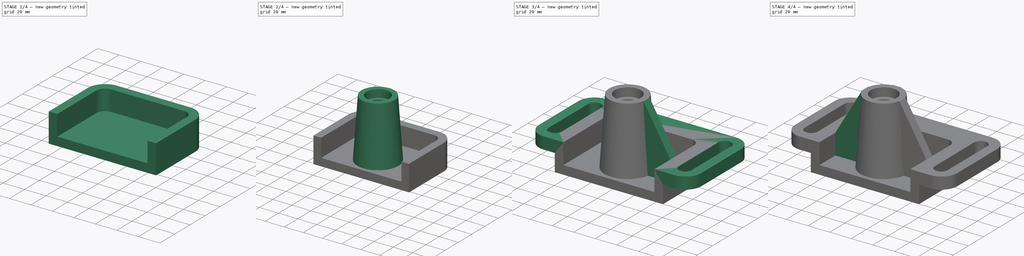
[diagram: build sequence overview — one tinted view per stage of 4, left to right]
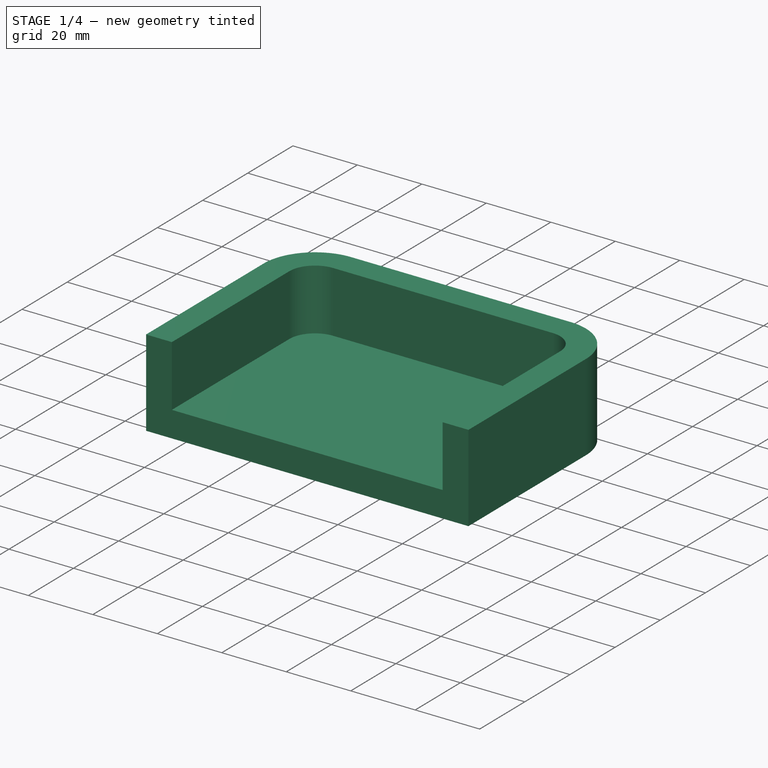
[diagram: stage 1 of 4 — iso view after this stage's code; geometry added in this stage tinted green]
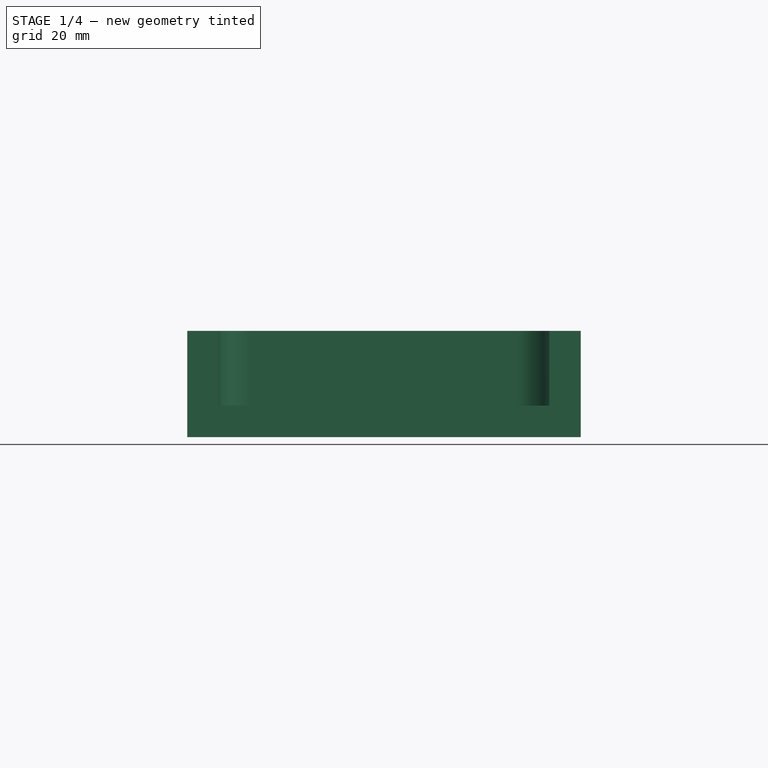
[diagram: stage 1 of 4 — front view after this stage's code; geometry added in this stage tinted green]
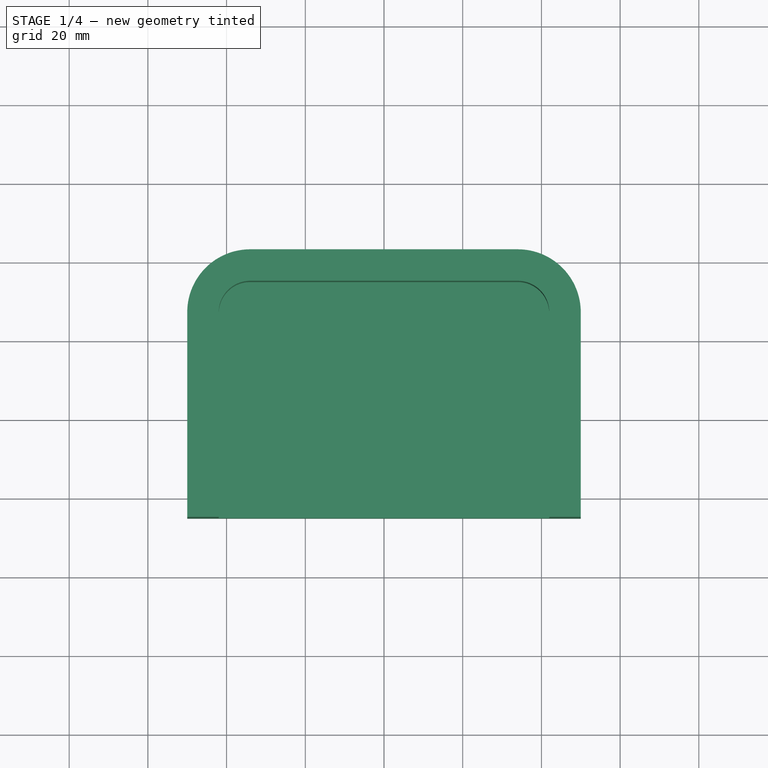
[diagram: stage 1 of 4 — top view after this stage's code; geometry added in this stage tinted green]
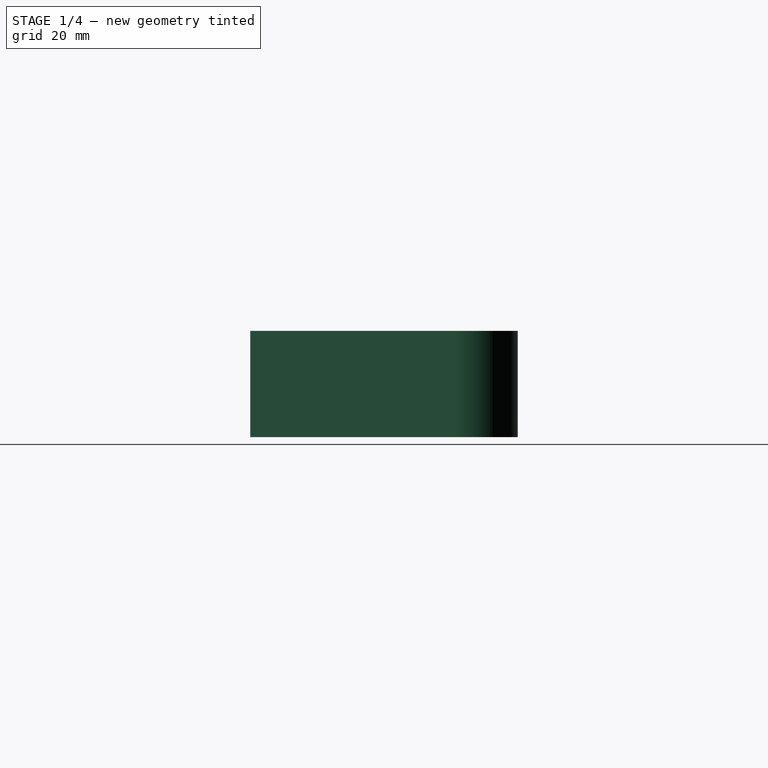
[diagram: stage 1 of 4 — right view after this stage's code; geometry added in this stage tinted green]
FCSTD DOCUMENT  (FreeCAD 1.1R41905 (Git))
Label: 24-WC-34-Slide_Guide
License: Creative Commons Attribution-NonCommercial-ShareAlike 4.0
LicenseURL: https://creativecommons.org/licenses/by-nc-sa/4.0/
objects: Sketcher::SketchObject×5, PartDesign::Pad×5, App::Point×1, PartDesign::Thickness×1, PartDesign::Hole×1, PartDesign::Pocket×1, PartDesign::Mirrored×1, PartDesign::Body×1
note: 37 computed .brp shape members not serialized (recipe doc carries the construction recipe); baked Part::Feature solids carry a one-line shape summary decoded from their .brp

FEATURE [App::Point] Origin001  label="Origine"
  Role = Origin
FEATURE [Sketcher::SketchObject] Sketch
  ArcFitTolerance = 1e-06
  AttachmentSupport = -> [Origin]
  ExternalTypes = [0]
  FullyConstrained = true
  MakeInternals = false
  MapMode = 5
  sketch-geometry (8):
    g0: LineSegment StartX=-50 StartY=-25 StartZ=0 EndX=50 EndY=-25 EndZ=0
    g1: LineSegment StartX=50 StartY=-25 StartZ=0 EndX=50 EndY=27 EndZ=0
    g2: LineSegment StartX=34 StartY=43 StartZ=0 EndX=-34 EndY=43 EndZ=0
    g3: LineSegment StartX=-50 StartY=27 StartZ=0 EndX=-50 EndY=-25 EndZ=0
    g4: ArcOfCircle CenterX=34 CenterY=27 CenterZ=0 NormalX=0 NormalY=0 NormalZ=1 AngleXU=0 Radius=16 StartAngle=0 EndAngle=1.5708
    g5: GeomPoint [constr] X=50 Y=43 Z=0
    g6: ArcOfCircle CenterX=-34 CenterY=27 CenterZ=0 NormalX=0 NormalY=0 NormalZ=1 AngleXU=0 Radius=16 StartAngle=1.5708 EndAngle=3.14159
    g7: GeomPoint [constr] X=-50 Y=43 Z=0
  constraints (19):
    c: Coincident(g0,g1)
    c: Coincident(g3,g0)
    c: Horizontal(g2)
    c: Vertical(g1)
    c: Vertical(g3)
    c: Distance(g1,g3) = 100
    c: Distance(g0,g7) = 68
    c: Distance(g-1,g0) = 25
    c: Symmetric(g0,g0,g-2)
    c: PointOnObject(g5,g2)
    c: PointOnObject(g5,g1)
    c: Tangent(g2,g4) = -1.5708
    c: Tangent(g1,g4) = -1.5708
    c: PointOnObject(g7,g3)
    c: PointOnObject(g7,g2)
    c: Tangent(g3,g6) = -1.5708
    c: Tangent(g2,g6) = -1.5708
    c: Radius(g4) = 16
    c: Equal(g6,g4)
FEATURE [PartDesign::Pad] Pad
  Direction = (0,0,1)
  Length = 27
  Length2 = 10
  Profile = -> Sketch
  ReferenceAxis = -> Sketch [N_Axis]
  Refine = true
  Suppressed = false
  Type = 0
FEATURE [PartDesign::Thickness] Thickness
  Base = -> Pad [Face1,Face8]
  BaseFeature = -> Pad
  Intersection = false
  Join = 0
  Mode = 0
  Refine = true
  Reversed = true
  SupportTransform = false
  Suppressed = false
  Value = 8
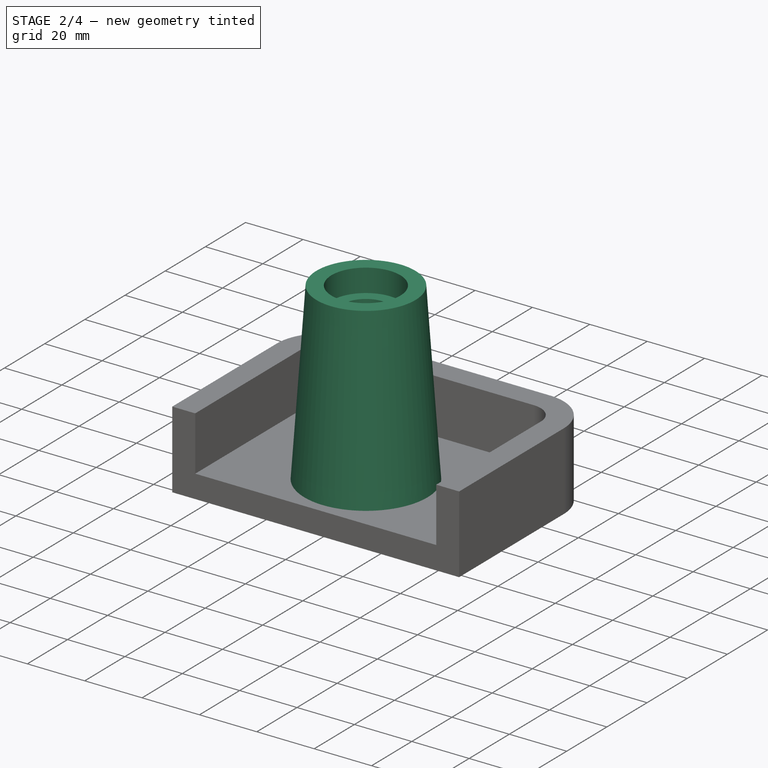
[diagram: stage 2 of 4 — iso view after this stage's code; geometry added in this stage tinted green]
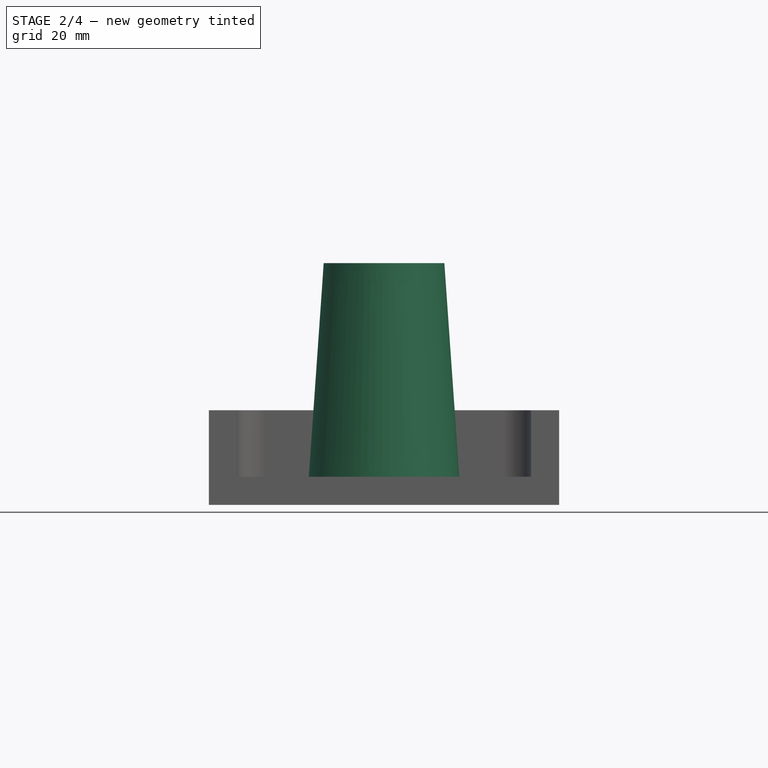
[diagram: stage 2 of 4 — front view after this stage's code; geometry added in this stage tinted green]
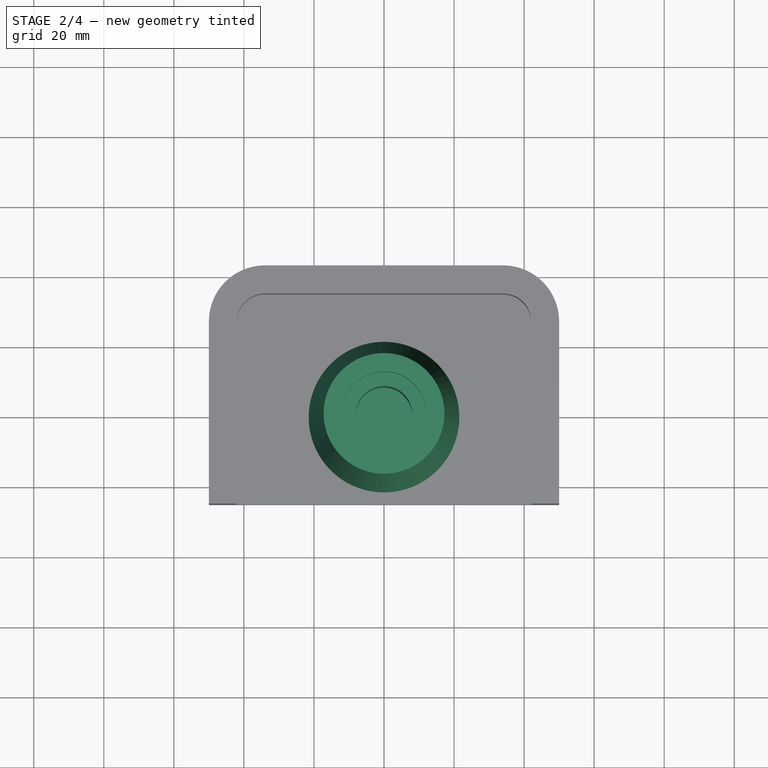
[diagram: stage 2 of 4 — top view after this stage's code; geometry added in this stage tinted green]
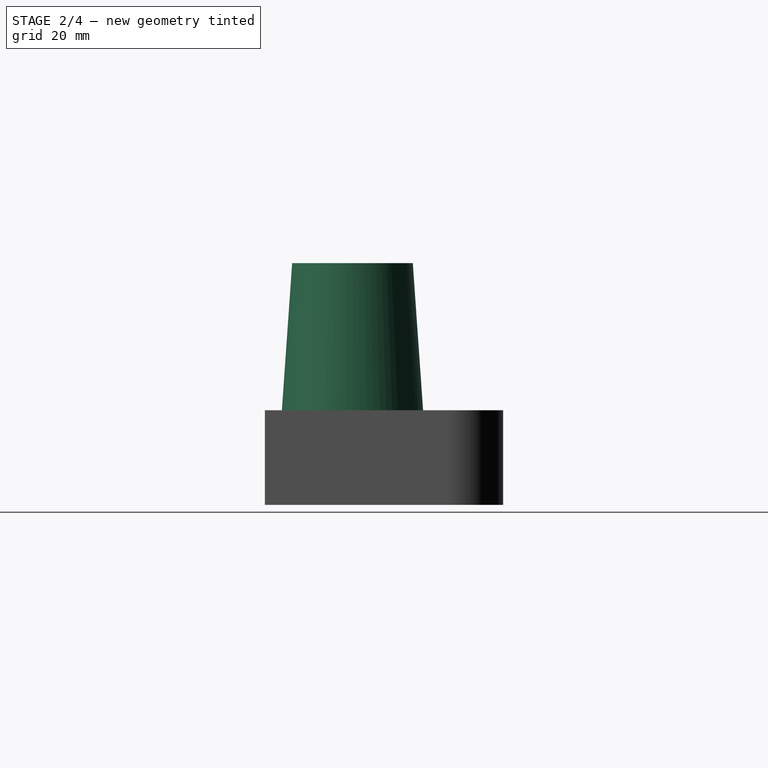
[diagram: stage 2 of 4 — right view after this stage's code; geometry added in this stage tinted green]
FEATURE [Sketcher::SketchObject] Sketch001
  ArcFitTolerance = 1e-06
  ExternalTypes = [0]
  FullyConstrained = true
  MakeInternals = false
  MapMode = 2
  Placement = pos=(0,0,8) rot=(0,0,1;0rad)
  sketch-geometry (1):
    g0: Circle CenterX=0 CenterY=0 CenterZ=0 NormalX=0 NormalY=0 NormalZ=1 AngleXU=0 Radius=21.5
  constraints (2):
    c: Diameter(g0) = 43
    c: Coincident(g0,g-1)
FEATURE [PartDesign::Pad] Pad001
  BaseFeature = -> Thickness
  Direction = (0,0,1)
  Length = 61
  Length2 = 10
  Profile = -> Sketch001
  ReferenceAxis = -> Sketch001 [N_Axis]
  Refine = true
  Suppressed = false
  TaperAngle = -4
  Type = 0
  expr: Length = 88 - 27
FEATURE [PartDesign::Hole] Hole
  BaseFeature = -> Pad001
  BaseProfileType = 7
  CustomThreadClearance = 0
  Depth = 40
  DepthType = 0
  Diameter = 16
  DrillForDepth = false
  DrillPoint = 0
  DrillPointAngle = 118
  HoleCutCountersinkAngle = 90
  HoleCutCustomValues = false
  HoleCutDepth = 8
  HoleCutDiameter = 24
  HoleCutType = 1
  ModelThread = false
  Profile = -> Pad001 [Edge39]
  Refine = true
  Suppressed = false
  Tapered = false
  TaperedAngle = 90
  ThreadClass = 0
  ThreadDepth = 40
  ThreadDepthType = 0
  ThreadDiameter = 16
  ThreadDirection = 0
  ThreadFit = 0
  ThreadSize = 0
  ThreadType = 0
  Threaded = false
  UseCustomThreadClearance = false
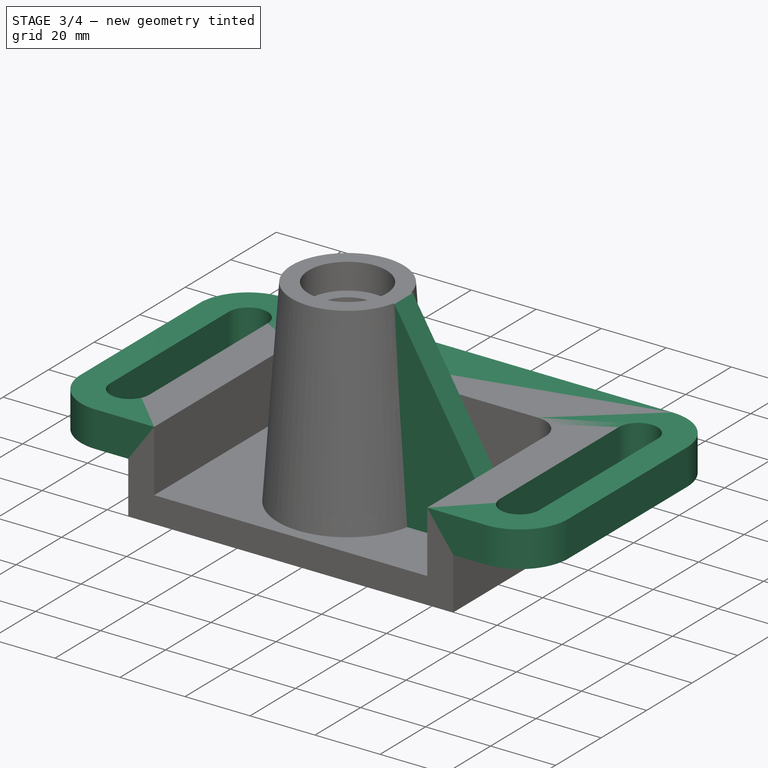
[diagram: stage 3 of 4 — iso view after this stage's code; geometry added in this stage tinted green]
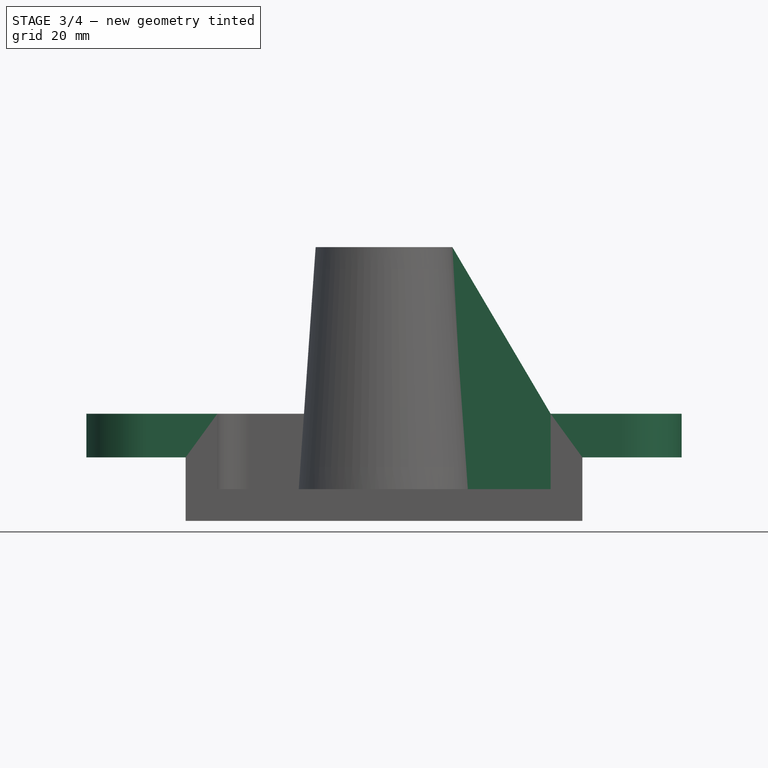
[diagram: stage 3 of 4 — front view after this stage's code; geometry added in this stage tinted green]
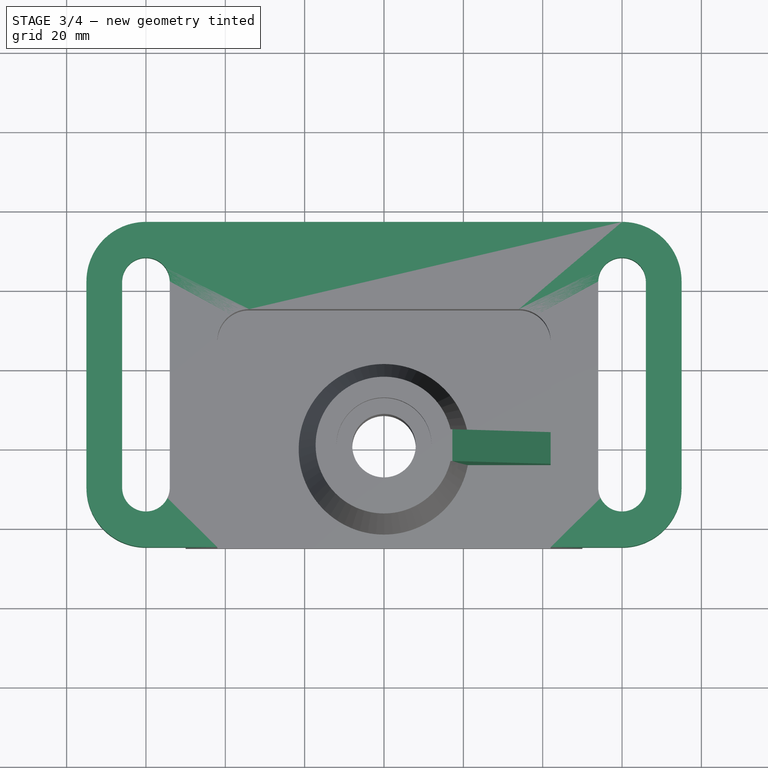
[diagram: stage 3 of 4 — top view after this stage's code; geometry added in this stage tinted green]
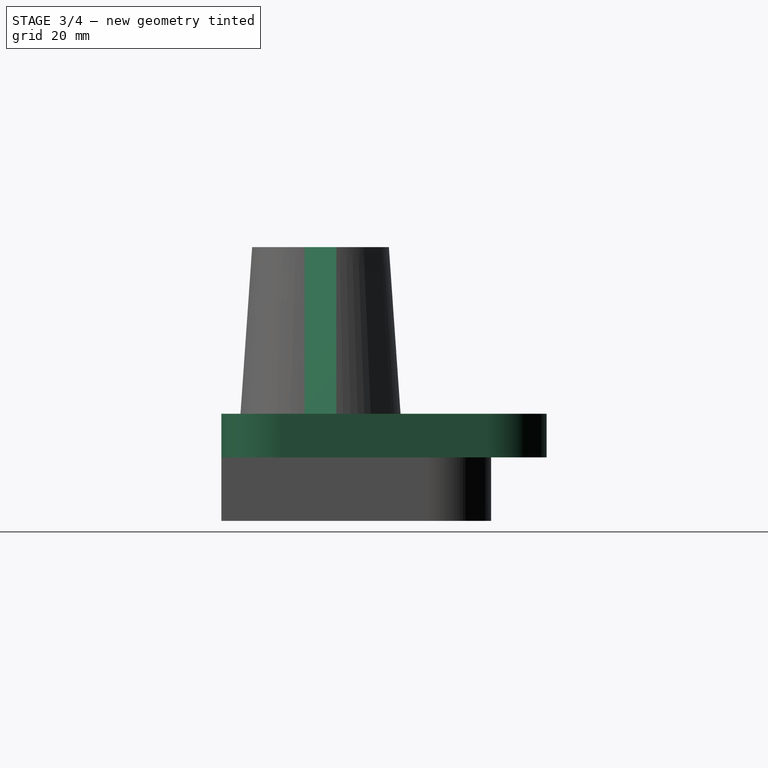
[diagram: stage 3 of 4 — right view after this stage's code; geometry added in this stage tinted green]
FEATURE [PartDesign::Pocket] Pocket
  BaseFeature = -> Hole
  Direction = (0,0,-1)
  Length = 100
  Length2 = 5
  Profile = -> Hole [Face20]
  Refine = true
  Suppressed = false
  TaperAngle = 10
  Type = 0
FEATURE [Sketcher::SketchObject] Sketch002
  ArcFitTolerance = 1e-06
  AttachmentSupport = -> [Pocket]
  ExternalGeometry = -> [Pocket]
  ExternalTypes = [0,0,0,0,0]
  FullyConstrained = true
  MakeInternals = false
  MapMode = 5
  Placement = pos=(0,0,27) rot=(0,0,1;0rad)
  sketch-geometry (19):
    g0: LineSegment StartX=-50 StartY=-25 StartZ=0 EndX=-60 EndY=-25 EndZ=0
    g1: LineSegment StartX=-75 StartY=-10 StartZ=0 EndX=-75 EndY=42 EndZ=0
    g2: ArcOfCircle CenterX=-60 CenterY=42 CenterZ=0 NormalX=0 NormalY=0 NormalZ=1 AngleXU=0 Radius=15 StartAngle=1.5708 EndAngle=3.14159
    g3: LineSegment StartX=-60 StartY=57 StartZ=0 EndX=60 EndY=57 EndZ=0
    g4: ArcOfCircle CenterX=60 CenterY=42 CenterZ=0 NormalX=0 NormalY=0 NormalZ=1 AngleXU=0 Radius=15 StartAngle=4e-16 EndAngle=1.5708
    g5: LineSegment StartX=75 StartY=42 StartZ=0 EndX=75 EndY=-10 EndZ=0
    g6: LineSegment StartX=60 StartY=-25 StartZ=0 EndX=50 EndY=-25 EndZ=0
    g7: ArcOfCircle CenterX=60 CenterY=-10 CenterZ=0 NormalX=0 NormalY=0 NormalZ=1 AngleXU=0 Radius=15 StartAngle=4.71239 EndAngle=6.28319
    g8: GeomPoint [constr] X=75 Y=-25 Z=0
    g9: ArcOfCircle CenterX=-60 CenterY=-10 CenterZ=0 NormalX=0 NormalY=0 NormalZ=1 AngleXU=0 Radius=15 StartAngle=3.14159 EndAngle=4.71239
    g10: GeomPoint [constr] X=-75 Y=-25 Z=0
    g11: ArcOfCircle CenterX=-60 CenterY=42 CenterZ=0 NormalX=0 NormalY=0 NormalZ=1 AngleXU=0 Radius=6 StartAngle=1e-16 EndAngle=3.14159
    g12: ArcOfCircle CenterX=-60 CenterY=-10 CenterZ=0 NormalX=0 NormalY=0 NormalZ=1 AngleXU=0 Radius=6 StartAngle=3.14159 EndAngle=6.28319
    g13: LineSegment StartX=-54 StartY=42 StartZ=0 EndX=-54 EndY=-10 EndZ=0
    g14: LineSegment StartX=-66 StartY=42 StartZ=0 EndX=-66 EndY=-10 EndZ=0
    g15: ArcOfCircle CenterX=60 CenterY=42 CenterZ=0 NormalX=0 NormalY=0 NormalZ=1 AngleXU=0 Radius=6 StartAngle=6.28318 EndAngle=9.42478
    g16: ArcOfCircle CenterX=60 CenterY=-10 CenterZ=0 NormalX=0 NormalY=0 NormalZ=1 AngleXU=0 Radius=6 StartAngle=3.14159 EndAngle=6.28319
    g17: LineSegment StartX=54 StartY=42 StartZ=0 EndX=54 EndY=-10 EndZ=0
    g18: LineSegment StartX=66 StartY=42 StartZ=0 EndX=66 EndY=-10 EndZ=0
  constraints (43):
    c: Coincident(g-3,g0)
    c: Horizontal(g0)
    c: Vertical(g1)
    c: Tangent(g1,g2) = 1.5708
    c: Horizontal(g3)
    c: Tangent(g3,g4) = 1.5708
    c: Tangent(g4,g5) = 1.5708
    c: Coincident(g6,g-7)
    c: Horizontal(g6)
    c: Vertical(g5)
    c: DistanceX(g10,g8) = 150
    c: Tangent(g2,g3) = 1.5708
    c: Radius(g4) = 15
    c: Symmetric(g2,g4,g-2)
    c: DistanceY(g0,g2) = 82
    c: PointOnObject(g8,g6)
    c: PointOnObject(g8,g5)
    c: Tangent(g6,g7) = 1.5708
    c: Tangent(g5,g7) = 1.5708
    c: PointOnObject(g10,g0)
    c: PointOnObject(g10,g1)
    c: Tangent(g0,g9) = 1.5708
    c: Tangent(g1,g9) = 1.5708
    c: Equal(g7,g4)
    c: Equal(g9,g2)
    c: Tangent(g11,g13) = 1.5708
    c: Tangent(g11,g14) = -1.5708
    c: Tangent(g12,g13) = 1.5708
    c: Tangent(g12,g14) = -1.5708
    c: Equal(g11,g12)
    c: Radius(g11) = 6
    c: Coincident(g11,g2)
    c: Coincident(g9,g12)
    c: Symmetric(g11,g15,g-2)
    c: Symmetric(g11,g15,g-2)
    c: Symmetric(g12,g16,g-2)
    c: Symmetric(g12,g16,g-2)
    c: Symmetric(g13,g17,g-2)
    c: Symmetric(g13,g17,g-2)
    c: Symmetric(g14,g18,g-2)
    c: Symmetric(g14,g18,g-2)
    c: Tangent(g16,g18)
    c: Tangent(g17,g15)
FEATURE [PartDesign::Pad] Pad002
  BaseFeature = -> Pocket
  Direction = (0,0,1)
  Length = 11
  Length2 = 10
  Profile = -> Sketch002
  ReferenceAxis = -> Sketch002 [N_Axis]
  Refine = true
  Reversed = true
  Suppressed = false
  Type = 0
FEATURE [Sketcher::SketchObject] Sketch003
  ArcFitTolerance = 1e-06
  AttachmentSupport = -> [Origin]
  ExternalGeometry = -> [Pad002]
  ExternalTypes = [0,0]
  FullyConstrained = true
  MakeInternals = false
  MapMode = 5
  Placement = pos=(0,0,0) rot=(1,0,0;1.5708rad)
  sketch-geometry (4):
    g0: LineSegment StartX=15.2345 StartY=69 StartZ=0 EndX=17.2345 EndY=69 EndZ=0
    g1: LineSegment StartX=17.2345 StartY=69 StartZ=0 EndX=42 EndY=27 EndZ=0
    g2: LineSegment StartX=15.2345 StartY=69 StartZ=0 EndX=19.5 EndY=8 EndZ=0
    g3: LineSegment StartX=19.5 StartY=8 StartZ=0 EndX=42 EndY=8 EndZ=0
  constraints (10):
    c: Horizontal(g0)
    c: Coincident(g0,g1)
    c: Coincident(g1,g-3)
    c: Coincident(g0,g2)
    c: Coincident(g2,g3)
    c: Coincident(g3,g-3)
    c: Horizontal(g3)
    c: Distance(g0,g0) = 2
    c: DistanceX(g2,g-4) = 2
    c: Coincident(g0,g-4)
FEATURE [PartDesign::Pad] Pad003
  BaseFeature = -> Pad002
  Direction = (0,-1,2e-16)
  Length = 8
  Length2 = 10
  Midplane = true
  Profile = -> Sketch003
  ReferenceAxis = -> Sketch003 [N_Axis]
  Refine = true
  Suppressed = false
  Type = 0
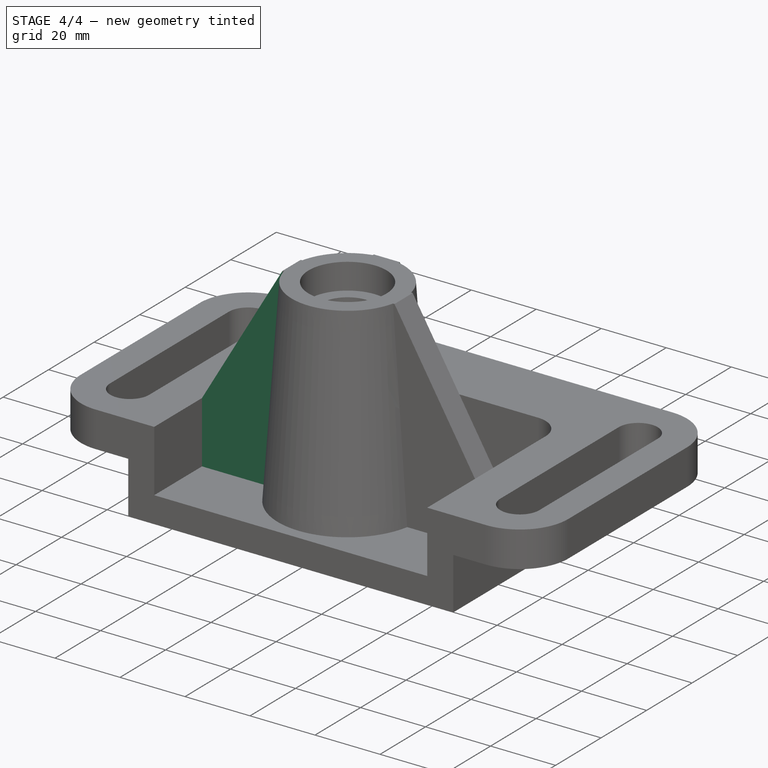
[diagram: stage 4 of 4 — iso view after this stage's code; geometry added in this stage tinted green]
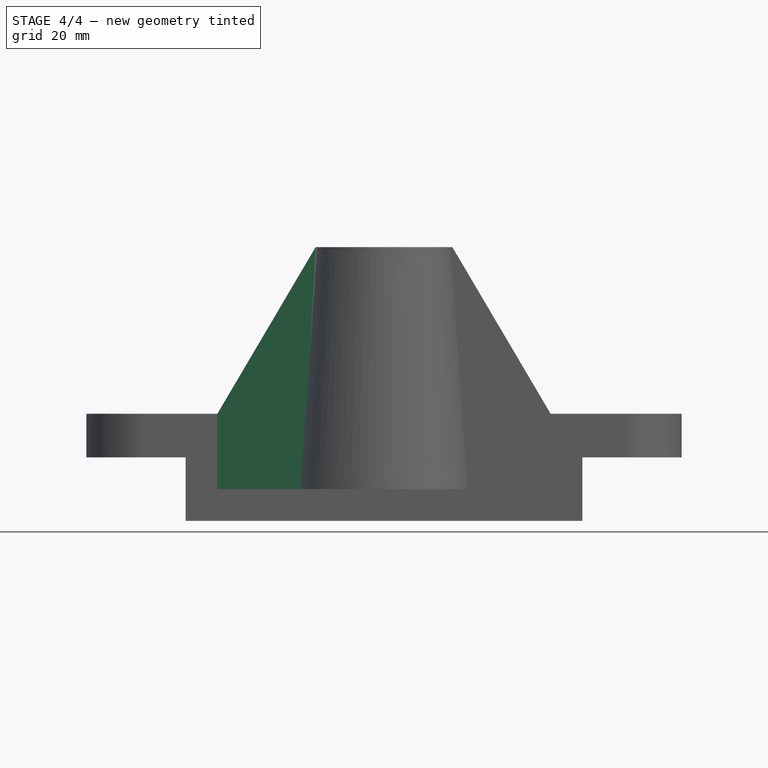
[diagram: stage 4 of 4 — front view after this stage's code; geometry added in this stage tinted green]
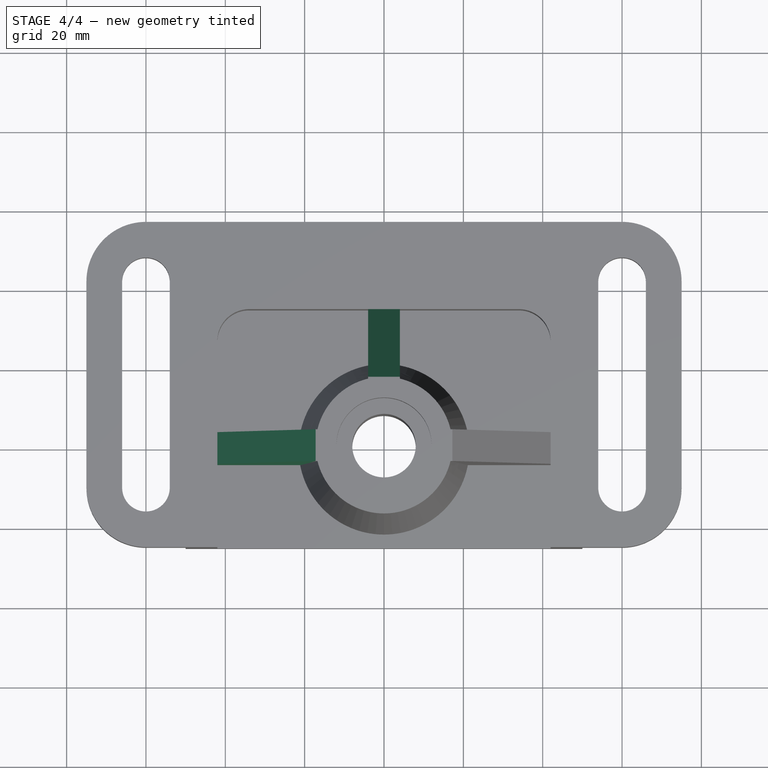
[diagram: stage 4 of 4 — top view after this stage's code; geometry added in this stage tinted green]
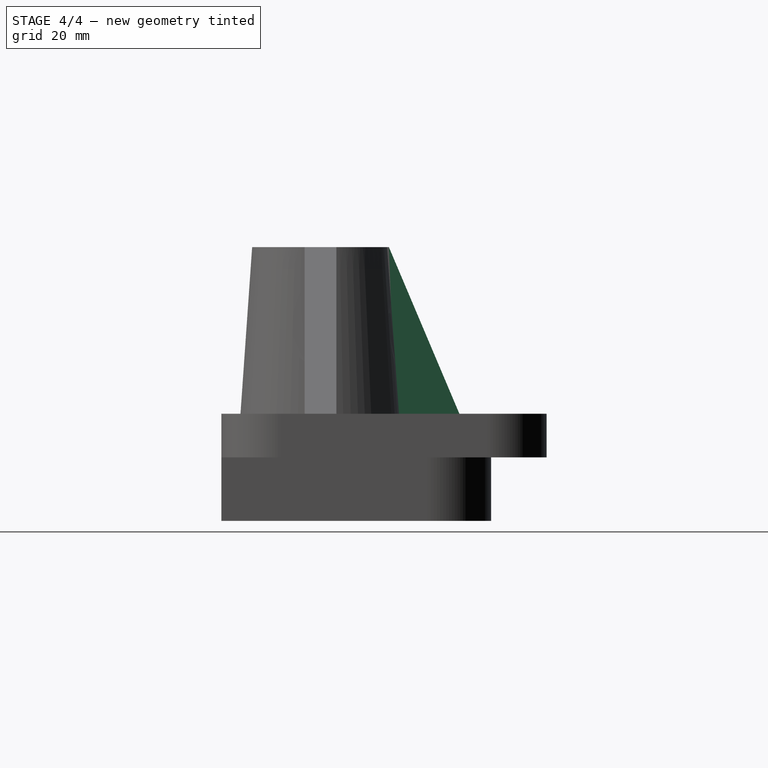
[diagram: stage 4 of 4 — right view after this stage's code; geometry added in this stage tinted green]
FEATURE [PartDesign::Mirrored] Mirrored
  BaseFeature = -> Pad003
  MirrorPlane = -> Sketch003 [V_Axis]
  Originals = -> [Pad003]
  Refine = true
  Suppressed = false
  TransformMode = 0
FEATURE [Sketcher::SketchObject] Sketch004
  ArcFitTolerance = 1e-06
  AttachmentSupport = -> [Origin]
  ExternalGeometry = -> [Mirrored]
  ExternalTypes = [0,0,0]
  FullyConstrained = true
  MakeInternals = false
  MapMode = 5
  Placement = pos=(0,0,0) rot=(0.57735,0.57735,0.57735;2.0944rad)
  sketch-geometry (4):
    g0: LineSegment StartX=35 StartY=27 StartZ=0 EndX=17.2345 EndY=69 EndZ=0
    g1: LineSegment StartX=17.2345 StartY=69 StartZ=0 EndX=16.2345 EndY=69 EndZ=0
    g2: LineSegment StartX=16.2345 StartY=69 StartZ=0 EndX=16.2345 EndY=8 EndZ=0
    g3: LineSegment StartX=16.2345 StartY=8 StartZ=0 EndX=35 EndY=8 EndZ=0
  constraints (10):
    c: Coincident(g0,g-3)
    c: Coincident(g0,g1)
    c: PointOnObject(g1,g-3)
    c: Coincident(g1,g2)
    c: Vertical(g2)
    c: Coincident(g2,g3)
    c: Horizontal(g3)
    c: Distance(g1,g1) = 1
    c: Coincident(g0,g-4)
    c: Coincident(g3,g-4)
FEATURE [PartDesign::Pad] Pad004
  BaseFeature = -> Mirrored
  Direction = (1,0,0)
  Length = 8
  Length2 = 10
  Midplane = true
  Profile = -> Sketch004
  ReferenceAxis = -> Sketch004 [N_Axis]
  Refine = true
  Suppressed = false
  Type = 0
FEATURE [PartDesign::Body] Body  label="Corps"
  AllowCompound = false
  Group = -> [Sketch,Pad,Thickness,Sketch001,Pad001,Hole,Pocket,Sketch002,Pad002,Sketch003,Pad003,Mirrored,Sketch004,Pad004]
  Origin = -> Origin
  Tip = -> Pad004
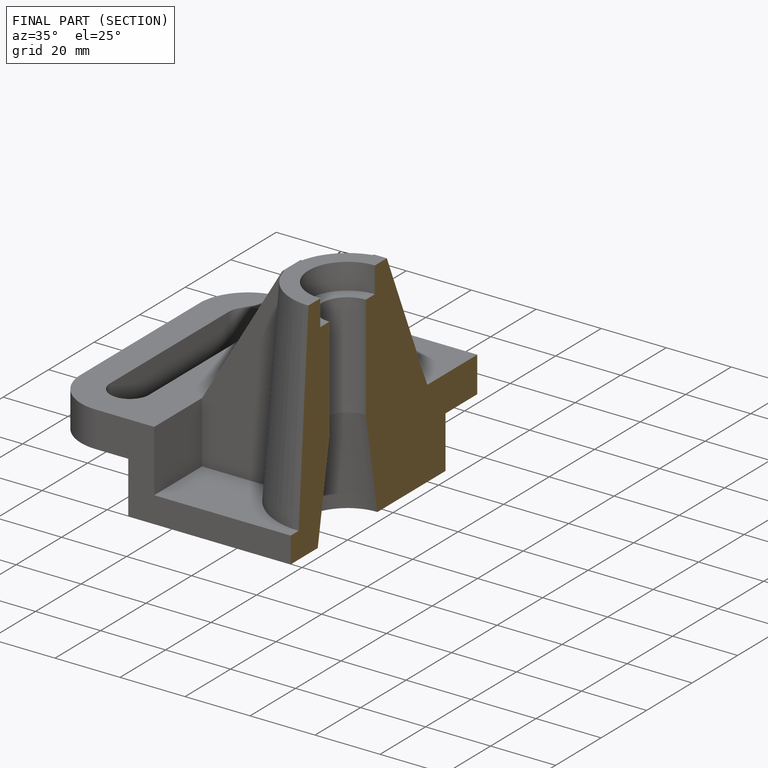
[diagram: finished part — half-section view (interior)]
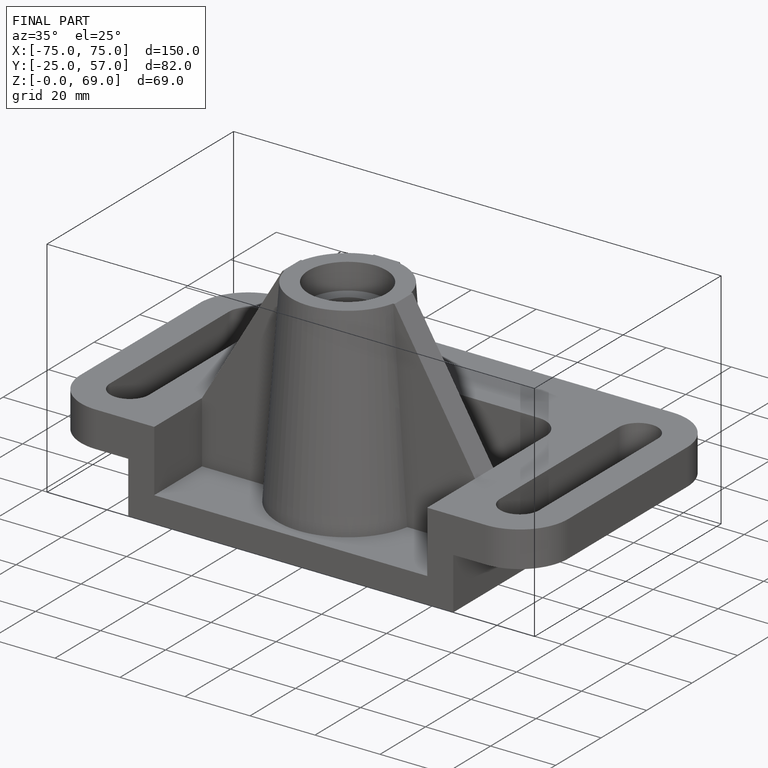
[diagram: finished part — iso view with bounding-box wireframe]
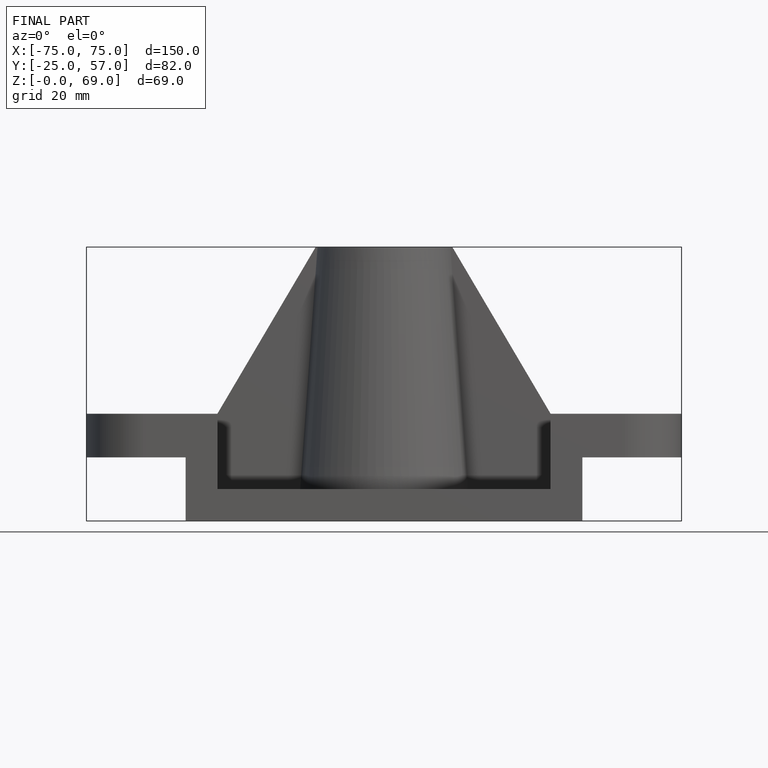
[diagram: finished part — front view with bounding-box wireframe]
